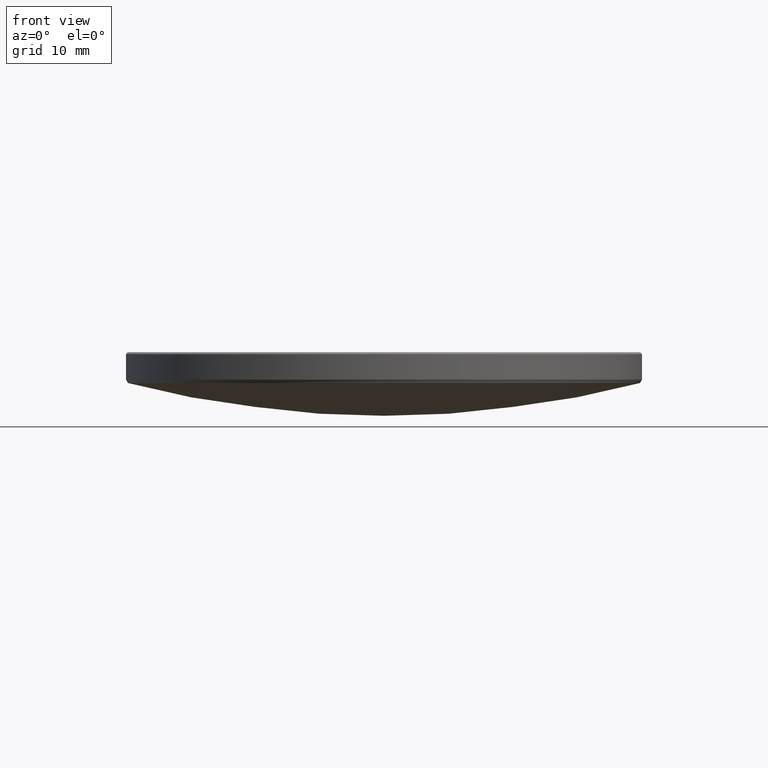
[diagram: clean part render]
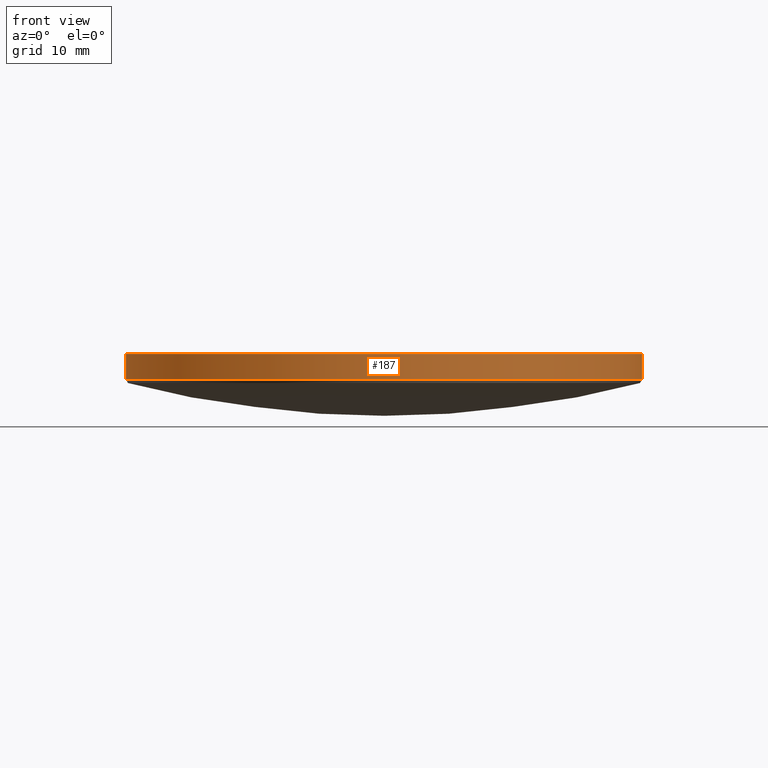
[diagram: same view with one face highlighted and labeled with its STEP entity id]
A machine part, front view. The second image highlights one B-rep face of the part: STEP entity #187.
In plain terms, the highlighted cylindrical surface (partial cylindrical patch) has radius 25.4 mm, axis along (-0, -0, -1).
Its self-contained STEP definition (entity closure, byte-faithful):
#4 = DIRECTION ( 'NONE',  ( -0.000000000000000000, -0.000000000000000000, -1.000000000000000000 ) ) ;
#15 = CYLINDRICAL_SURFACE ( 'NONE', #296, 25.39999999999999858 ) ;
#21 = VERTEX_POINT ( 'NONE', #266 ) ;
#40 = EDGE_CURVE ( 'NONE', #21, #71, #202, .T. ) ;
#41 = DIRECTION ( 'NONE',  ( -1.000000000000000000, 0.000000000000000000, 0.000000000000000000 ) ) ;
#43 = AXIS2_PLACEMENT_3D ( 'NONE', #113, #183, #131 ) ;
#52 = VERTEX_POINT ( 'NONE', #55 ) ;
#55 = CARTESIAN_POINT ( 'NONE',  ( 25.39999999999999858, 3.110602869834276865E-15, 15.79999999999998117 ) ) ;
#71 = VERTEX_POINT ( 'NONE', #80 ) ;
#76 = VERTEX_POINT ( 'NONE', #210 ) ;
#80 = CARTESIAN_POINT ( 'NONE',  ( -25.39999999999999858, 0.000000000000000000, 13.28032383718598375 ) ) ;
#84 = DIRECTION ( 'NONE',  ( 1.000000000000000000, 0.000000000000000000, 0.000000000000000000 ) ) ;
#85 = LINE ( 'NONE', #259, #278 ) ;
#88 = CARTESIAN_POINT ( 'NONE',  ( 0.000000000000000000, 0.000000000000000000, 15.79999999999998117 ) ) ;
#89 = EDGE_CURVE ( 'NONE', #71, #76, #320, .T. ) ;
#91 = DIRECTION ( 'NONE',  ( -0.000000000000000000, -0.000000000000000000, -1.000000000000000000 ) ) ;
#104 = CARTESIAN_POINT ( 'NONE',  ( -25.39999999999999858, 0.000000000000000000, 20.00000000000000000 ) ) ;
#113 = CARTESIAN_POINT ( 'NONE',  ( 0.000000000000000000, 0.000000000000000000, 13.28032383718598375 ) ) ;
#114 = EDGE_CURVE ( 'NONE', #52, #21, #224, .T. ) ;
#117 = CARTESIAN_POINT ( 'NONE',  ( 0.000000000000000000, 0.000000000000000000, 20.00000000000000000 ) ) ;
#124 = EDGE_LOOP ( 'NONE', ( #250, #174, #216, #192 ) ) ;
#131 = DIRECTION ( 'NONE',  ( -1.000000000000000000, 0.000000000000000000, 0.000000000000000000 ) ) ;
#152 = DIRECTION ( 'NONE',  ( -0.000000000000000000, -0.000000000000000000, -1.000000000000000000 ) ) ;
#174 = ORIENTED_EDGE ( 'NONE', *, *, #114, .T. ) ;
#183 = DIRECTION ( 'NONE',  ( -0.000000000000000000, -0.000000000000000000, 1.000000000000000000 ) ) ;
#187 = ADVANCED_FACE ( 'NONE', ( #240 ), #15, .T. ) ;
#192 = ORIENTED_EDGE ( 'NONE', *, *, #89, .T. ) ;
#202 = LINE ( 'NONE', #104, #289 ) ;
#205 = AXIS2_PLACEMENT_3D ( 'NONE', #88, #235, #84 ) ;
#210 = CARTESIAN_POINT ( 'NONE',  ( 25.39999999999999858, 3.110602869834276865E-15, 13.28032383718598375 ) ) ;
#216 = ORIENTED_EDGE ( 'NONE', *, *, #40, .T. ) ;
#224 = CIRCLE ( 'NONE', #205, 25.39999999999999858 ) ;
#235 = DIRECTION ( 'NONE',  ( 0.000000000000000000, 0.000000000000000000, -1.000000000000000000 ) ) ;
#240 = FACE_OUTER_BOUND ( 'NONE', #124, .T. ) ;
#250 = ORIENTED_EDGE ( 'NONE', *, *, #292, .F. ) ;
#259 = CARTESIAN_POINT ( 'NONE',  ( 25.39999999999999858, 3.110602869834276865E-15, 20.00000000000000000 ) ) ;
#266 = CARTESIAN_POINT ( 'NONE',  ( -25.39999999999999858, 0.000000000000000000, 15.79999999999998117 ) ) ;
#278 = VECTOR ( 'NONE', #4, 1000.000000000000000 ) ;
#289 = VECTOR ( 'NONE', #152, 1000.000000000000000 ) ;
#292 = EDGE_CURVE ( 'NONE', #52, #76, #85, .T. ) ;
#296 = AXIS2_PLACEMENT_3D ( 'NONE', #117, #91, #41 ) ;
#320 = CIRCLE ( 'NONE', #43, 25.39999999999999858 ) ;